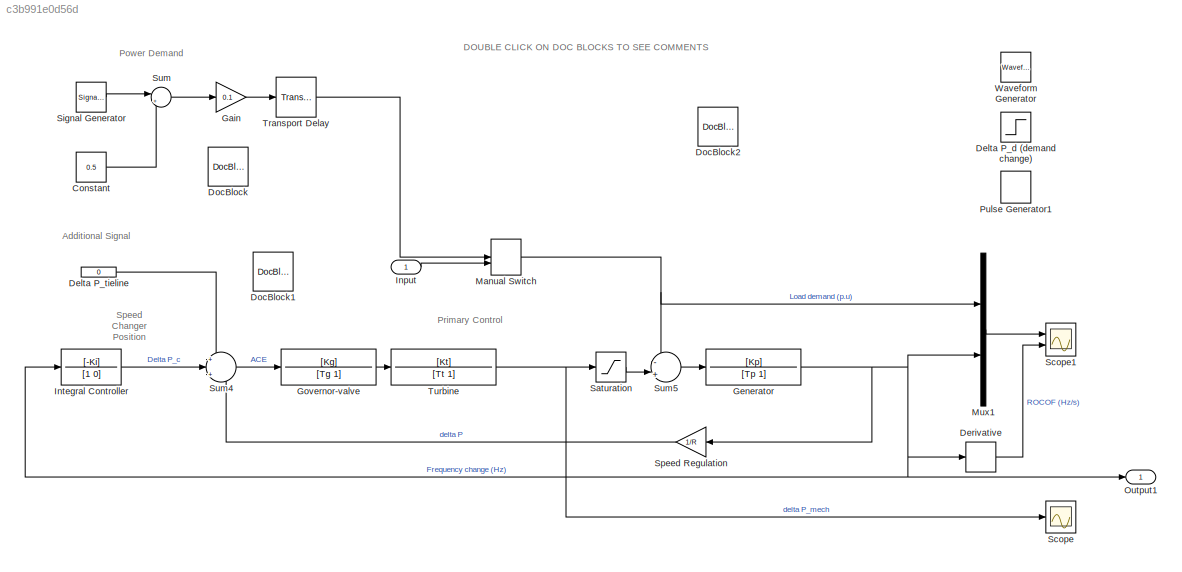
MODEL slx_c3b991e0d56d
KIND model
CONFIG AbsTol = auto
CONFIG EnableMultiTasking = off
CONFIG FixedStep = 0.001
CONFIG MaxStep = 0.01
CONFIG MinStep = auto
CONFIG RelTol = 1e-3
CONFIG SampleTimeConstraint = Unconstrained
CONFIG SolverName = VariableStepAuto
CONFIG StartTime = 0.0
CONFIG StopTime = 20
BLOCK [Constant] Constant
  Value = 0.5
BLOCK [Step] Delta P_d (demand change)
  After = 0.162
  Commented = on
  NameLocation = left
  SampleTime = 0
BLOCK [Constant] Delta P_tieline
  Commented = on
  Value = 0
BLOCK [Derivative] Derivative
BLOCK [Reference] DocBlock  REF=simulink/Model-Wide
Utilities/DocBlock
  Ports = []
  SourceBlock = simulink/Model-Wide\nUtilities/DocBlock
  SourceProductBaseCode = SL
  SourceType = DocBlock
  UserDataPersistent = on
BLOCK [Reference] DocBlock1  REF=simulink/Model-Wide
Utilities/DocBlock
  Ports = []
  SourceBlock = simulink/Model-Wide\nUtilities/DocBlock
  SourceProductBaseCode = SL
  SourceType = DocBlock
  UserDataPersistent = on
BLOCK [Reference] DocBlock2  REF=simulink/Model-Wide
Utilities/DocBlock
  Ports = []
  SourceBlock = simulink/Model-Wide\nUtilities/DocBlock
  SourceProductBaseCode = SL
  SourceType = DocBlock
  UserDataPersistent = on
BLOCK [Gain] Gain
  Gain = 0.1
BLOCK [TransferFcn] Generator 
  Denominator = [Tp 1]
  Numerator = [Kp]
BLOCK [TransferFcn] Governor-valve 
  Denominator = [Tg 1]
  Numerator = [Kg]
BLOCK [Inport] Input
BLOCK [TransferFcn] Integral Controller
  Denominator = [1 0]
  Numerator = [-Ki]
BLOCK [ManualSwitch] Manual Switch
BLOCK [Mux] Mux1
  DisplayOption = bar
  Inputs = 2
  Ports = [2, 1]
BLOCK [Outport] Output1
BLOCK [DiscretePulseGenerator] Pulse Generator1
  Amplitude = 0.1
  Commented = on
  Period = 2*pi/2.27
  PhaseDelay = 1
  Ports = [0, 1]
  PulseType = Time based
  PulseWidth = 50
BLOCK [Saturate] Saturation
BLOCK [Scope] Scope
  Floating = off
  NumInputPorts = 1
  Ports = [1]
  ScopeSpecificationString = Simulink.scopes.TimeScopeBlockCfg('CurrentConfiguration', extmgr.ConfigurationSet(extmgr.Configuration('Core','General UI',true),extmgr.Configuration('Core','Source UI',true),extmgr.Configuration('Sources','WiredSimulink',true,'DataLoggingVariableName','ScopeData1'),extmgr.Configuration('Visuals','Time Domain',true,'SerializedDisplays',{struct('MinYLimReal','-0.03023','MaxYLimReal','0.27206','YLab...<+1420ch>
BLOCK [Scope] Scope1
  Floating = off
  NumInputPorts = 2
  Ports = [2]
  ScopeSpecificationString = Simulink.scopes.TimeScopeBlockCfg('CurrentConfiguration', extmgr.ConfigurationSet(extmgr.Configuration('Core','General UI',true),extmgr.Configuration('Core','Source UI',true),extmgr.Configuration('Sources','WiredSimulink',true,'DataLoggingVariableName','ScopeData1'),extmgr.Configuration('Visuals','Time Domain',true,'SerializedDisplays',{struct('MinYLimReal','-0.32477','MaxYLimReal','0.32477','YLab...<+2177ch>
BLOCK [SignalGenerator] Signal Generator
  Amplitude = 0.5
  Frequency = 2.27
  Ports = [0, 1]
  Units = rad/sec
  WaveForm = square
BLOCK [Gain] Speed Regulation
  Gain = 1/R
  NameLocation = top
BLOCK [Sum] Sum
  Inputs = |++
  Ports = [2, 1]
BLOCK [Sum] Sum4
  Inputs = +|+|-
  Ports = [3, 1]
BLOCK [Sum] Sum5
  Inputs = -|+||
  Ports = [2, 1]
BLOCK [TransportDelay] Transport Delay
  Ports = [1, 1]
BLOCK [TransferFcn] Turbine 
  Denominator = [Tt 1]
  Numerator = [Kt]
BLOCK [Reference] Waveform Generator  REF=simulink/Sources/Waveform
Generator
  Commented = on
  NameLocation = left
  Ports = [0, 1]
  SourceBlock = simulink/Sources/Waveform\nGenerator
  SourceProductBaseCode = SL
  SourceType = WaveformGenerator
ANNOTATION (root): DOUBLE CLICK ON DOC BLOCKS TO SEE COMMENTS
ANNOTATION (root): Additional Signal
ANNOTATION (root): Power Demand
ANNOTATION (root): Primary Control
ANNOTATION (root): Speed Changer Position
LINE Constant:1 -> Sum:2
LINE Delta P_tieline:1 -> Sum4:1
LINE Derivative:1 -> Scope1:2
LINE Gain:1 -> Transport Delay:1
NET Generator :1 -> Derivative:1, Integral Controller:1, Mux1:2, Output1:1, Speed Regulation:1
LINE Governor-valve :1 -> Turbine :1
LINE Input:1 -> Manual Switch:2
LINE Integral Controller:1 -> Sum4:2
NET Manual Switch:1 -> Mux1:1, Sum5:1
LINE Mux1:1 -> Scope1:1
LINE Saturation:1 -> Sum5:2
LINE Signal Generator:1 -> Sum:1
LINE Speed Regulation:1 -> Sum4:3
LINE Sum4:1 -> Governor-valve :1
LINE Sum5:1 -> Generator :1
LINE Sum:1 -> Gain:1
LINE Transport Delay:1 -> Manual Switch:1
NET Turbine :1 -> Saturation:1, Scope:1
note: NET lines group one-source signal fan-out (src -> all destinations, sorted); 1:1 wires keep LINE
